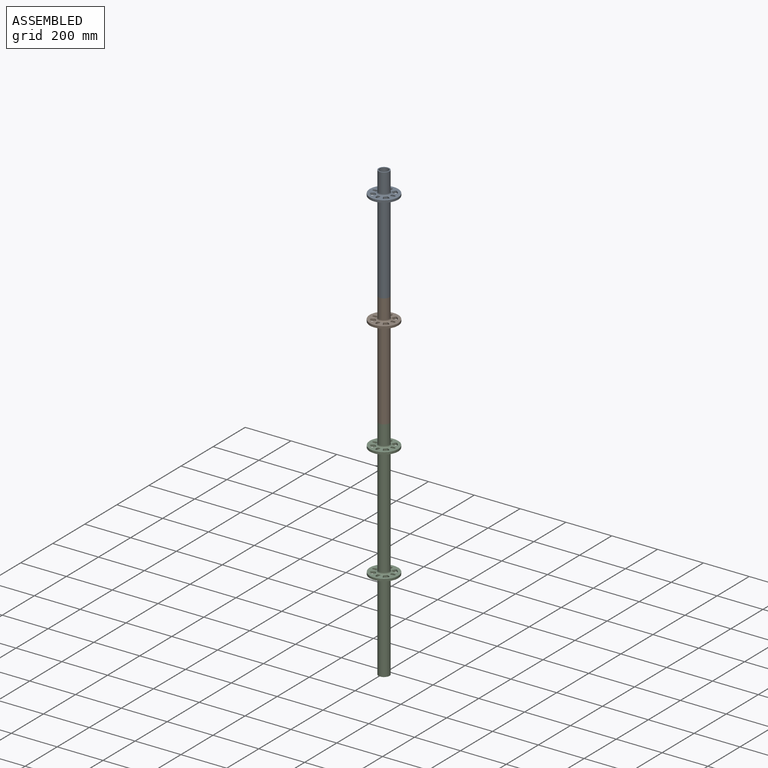
[diagram: assembled view]
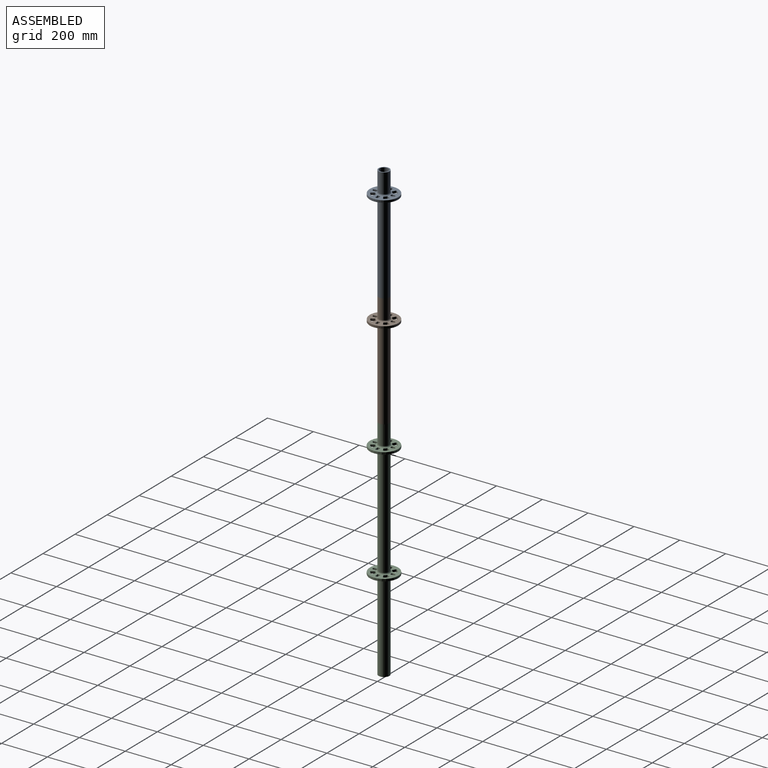
[diagram: assembled view, second angle]
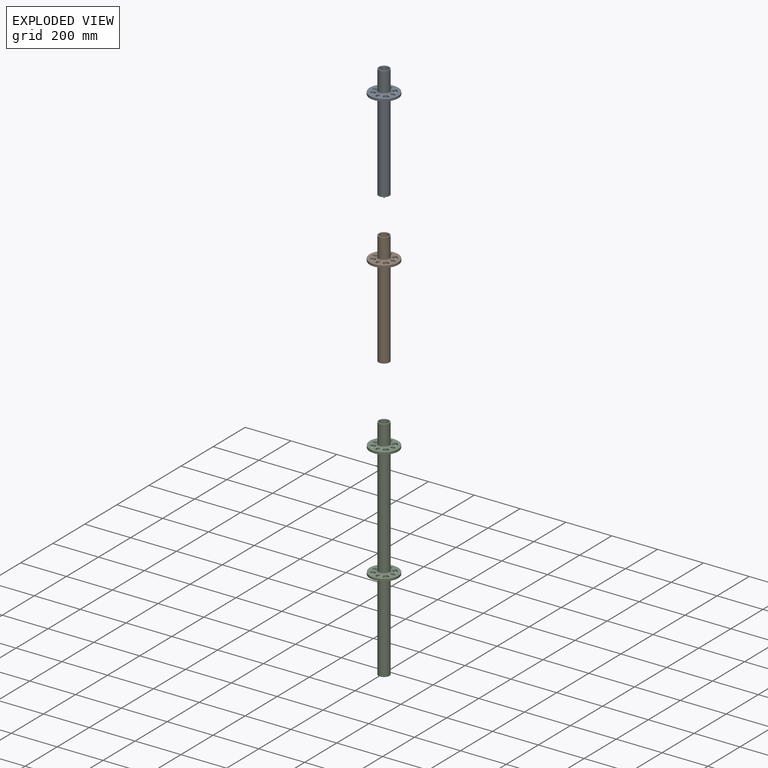
[diagram: exploded view]
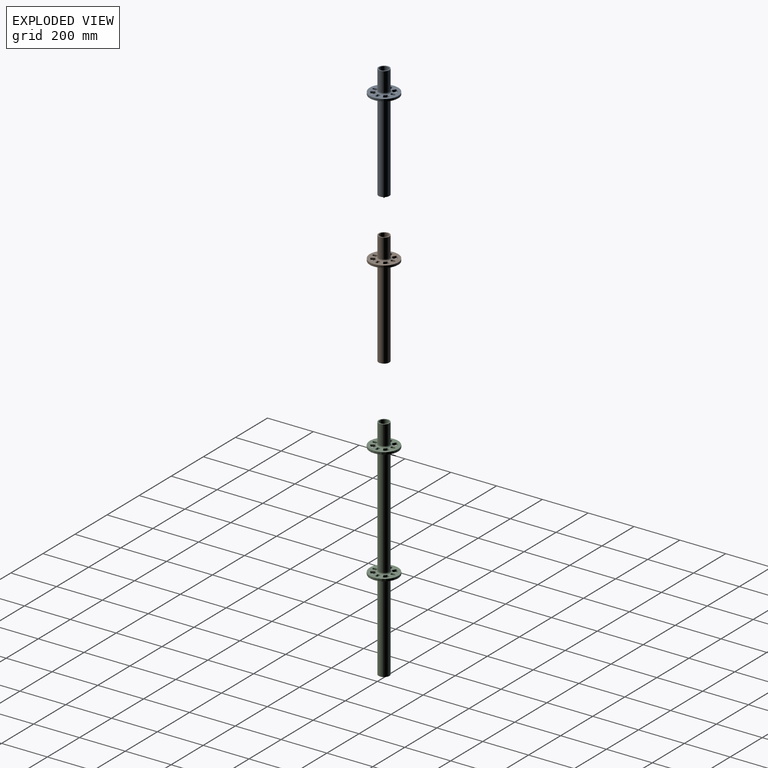
[diagram: exploded view, second angle]
ASSEMBLY  parts=3 mates=3
PART A: 82 faces, bbox 123.8x123.8x496.9 mm
  f0: plane 12.12x9.53mm, normal (-0.87,-0.5,0), area 133.3mm2, adj f1,f64,f73,f74
  f1: cylinder r=2.54mm len=9.53mm, axis (0,0,-1), area 36.1mm2, adj f0,f2,f73,f74
  f2: cylinder r=30.16mm len=9.53mm, axis (0,0,-1), area 105.8mm2, adj f1,f3,f80,f81
  f3: cylinder r=2.54mm len=9.53mm, axis (0,0,-1), area 36.1mm2, adj f2,f4,f73,f74
  f4: plane 12.12x9.53mm, normal (0.5,0.87,0), area 133.3mm2, adj f3,f5,f73,f74
  f5: cylinder r=2.54mm len=9.53mm, axis (0,0,-1), area 39.3mm2, adj f4,f6,f73,f74
  f6: cylinder r=49.21mm len=14.33mm, axis (0,0,-1), area 194.4mm2, adj f5,f64,f73,f74
  f7: cylinder r=28.8mm len=11.11mm, axis (0,0,-1), area 108.6mm2, adj f8,f65,f73,f74
  f8: plane 9.53x3.81mm, normal (-1,0,0), area 36.3mm2, adj f7,f9,f73,f74
  f9: cylinder r=2.54mm len=9.53mm, axis (0,0,-1), area 38mm2, adj f8,f10,f73,f74
  f10: plane 9.53x7.62mm, normal (0,1,0), area 72.6mm2, adj f9,f11,f73,f74
  f11: cylinder r=2.54mm len=9.53mm, axis (0,0,-1), area 38mm2, adj f10,f12,f73,f74
  f12: plane 9.53x3.81mm, normal (1,0,0), area 36.3mm2, adj f11,f13,f73,f74
  f13: cylinder r=28.8mm len=11.11mm, axis (0,0,-1), area 108.6mm2, adj f12,f14,f73,f74
  f14: cylinder r=2.54mm len=9.53mm, axis (0,0,-1), area 27.5mm2, adj f13,f15,f73,f74
  f15: cylinder r=49.21mm len=9.53mm, axis (0,0,-1), area 35.8mm2, adj f14,f65,f73,f74
  f16: plane 12.12x9.53mm, normal (0.5,-0.87,0), area 133.3mm2, adj f17,f66,f73,f74
  f17: cylinder r=2.54mm len=9.53mm, axis (0,0,-1), area 36.1mm2, adj f16,f18,f73,f74
  f18: cylinder r=30.16mm len=9.53mm, axis (0,0,-1), area 105.8mm2, adj f17,f19,f80,f81
  f19: cylinder r=2.54mm len=9.53mm, axis (0,0,-1), area 36.1mm2, adj f18,f20,f73,f74
  f20: plane 12.12x9.53mm, normal (-0.87,0.5,0), area 133.3mm2, adj f19,f21,f73,f74
  f21: cylinder r=2.54mm len=9.53mm, axis (0,0,-1), area 39.3mm2, adj f20,f22,f73,f74
  f22: cylinder r=49.21mm len=14.33mm, axis (0,0,-1), area 194.4mm2, adj f21,f66,f73,f74
  f23: cylinder r=28.8mm len=11.11mm, axis (0,0,-1), area 108.6mm2, adj f24,f67,f73,f74
  f24: plane 9.53x3.81mm, normal (0,-1,0), area 36.3mm2, adj f23,f25,f73,f74
  f25: cylinder r=2.54mm len=9.53mm, axis (0,0,-1), area 38mm2, adj f24,f26,f73,f74
  f26: plane 9.53x7.62mm, normal (-1,0,0), area 72.6mm2, adj f25,f27,f73,f74
  f27: cylinder r=2.54mm len=9.53mm, axis (0,0,-1), area 38mm2, adj f26,f28,f73,f74
  f28: plane 9.53x3.81mm, normal (0,1,0), area 36.3mm2, adj f27,f29,f73,f74
  f29: cylinder r=28.8mm len=11.11mm, axis (0,0,-1), area 108.6mm2, adj f28,f30,f73,f74
  f30: cylinder r=2.54mm len=9.53mm, axis (0,0,-1), area 27.5mm2, adj f29,f31,f73,f74
  f31: cylinder r=49.21mm len=9.53mm, axis (0,0,-1), area 35.8mm2, adj f30,f67,f73,f74
  f32: plane 12.12x9.53mm, normal (0.87,0.5,0), area 133.3mm2, adj f33,f68,f73,f74
  f33: cylinder r=2.54mm len=9.53mm, axis (0,0,-1), area 36.1mm2, adj f32,f34,f73,f74
  f34: cylinder r=30.16mm len=9.53mm, axis (0,0,-1), area 105.8mm2, adj f33,f35,f80,f81
  f35: cylinder r=2.54mm len=9.53mm, axis (0,0,-1), area 36.1mm2, adj f34,f36,f73,f74
  f36: plane 12.12x9.53mm, normal (-0.5,-0.87,0), area 133.3mm2, adj f35,f37,f73,f74
  f37: cylinder r=2.54mm len=9.53mm, axis (0,0,-1), area 39.3mm2, adj f36,f38,f73,f74
  f38: cylinder r=49.21mm len=14.33mm, axis (0,0,-1), area 194.4mm2, adj f37,f68,f73,f74
  f39: cylinder r=28.8mm len=11.11mm, axis (0,0,-1), area 108.6mm2, adj f40,f69,f73,f74
  f40: plane 9.53x3.81mm, normal (1,0,0), area 36.3mm2, adj f39,f41,f73,f74
  f41: cylinder r=2.54mm len=9.53mm, axis (0,0,-1), area 38mm2, adj f40,f42,f73,f74
  f42: plane 9.53x7.62mm, normal (0,-1,0), area 72.6mm2, adj f41,f43,f73,f74
  f43: cylinder r=2.54mm len=9.53mm, axis (0,0,-1), area 38mm2, adj f42,f44,f73,f74
  f44: plane 9.53x3.81mm, normal (-1,0,0), area 36.3mm2, adj f43,f45,f73,f74
  f45: cylinder r=28.8mm len=11.11mm, axis (0,0,-1), area 108.6mm2, adj f44,f46,f73,f74
  f46: cylinder r=2.54mm len=9.53mm, axis (0,0,-1), area 27.5mm2, adj f45,f47,f73,f74
  f47: cylinder r=49.21mm len=9.53mm, axis (0,0,-1), area 35.8mm2, adj f46,f69,f73,f74
  f48: cylinder r=28.8mm len=11.11mm, axis (0,0,-1), area 108.6mm2, adj f49,f70,f73,f74
  f49: plane 9.53x3.81mm, normal (0,1,0), area 36.3mm2, adj f48,f50,f73,f74
  f50: cylinder r=2.54mm len=9.53mm, axis (0,0,-1), area 38mm2, adj f49,f51,f73,f74
  f51: plane 9.53x7.62mm, normal (1,0,0), area 72.6mm2, adj f50,f52,f73,f74
  f52: cylinder r=2.54mm len=9.53mm, axis (0,0,-1), area 38mm2, adj f51,f53,f73,f74
  f53: plane 9.53x3.81mm, normal (0,-1,0), area 36.3mm2, adj f52,f54,f73,f74
  f54: cylinder r=28.8mm len=11.11mm, axis (0,0,-1), area 108.6mm2, adj f53,f55,f73,f74
  f55: cylinder r=2.54mm len=9.53mm, axis (0,0,-1), area 27.5mm2, adj f54,f56,f73,f74
  f56: cylinder r=49.21mm len=9.53mm, axis (0,0,-1), area 35.8mm2, adj f55,f70,f73,f74
  f57: cylinder r=2.54mm len=9.53mm, axis (0,0,-1), area 36.1mm2, adj f58,f71,f73,f74
  f58: cylinder r=30.16mm len=9.53mm, axis (0,0,-1), area 105.8mm2, adj f57,f59,f80,f81
  f59: cylinder r=2.54mm len=9.53mm, axis (0,0,-1), area 36.1mm2, adj f58,f60,f73,f74
  f60: plane 12.12x9.53mm, normal (0.87,-0.5,0), area 133.3mm2, adj f59,f61,f73,f74
  f61: cylinder r=2.54mm len=9.53mm, axis (0,0,-1), area 39.3mm2, adj f60,f62,f73,f74
  f62: cylinder r=49.21mm len=14.33mm, axis (0,0,-1), area 194.4mm2, adj f61,f63,f73,f74
  f63: cylinder r=2.54mm len=9.53mm, axis (0,0,-1), area 39.3mm2, adj f62,f71,f73,f74
  f64: cylinder r=2.54mm len=9.53mm, axis (0,0,-1), area 39.3mm2, adj f0,f6,f73,f74
  f65: cylinder r=2.54mm len=9.53mm, axis (0,0,-1), area 27.5mm2, adj f7,f15,f73,f74
  f66: cylinder r=2.54mm len=9.53mm, axis (0,0,-1), area 39.3mm2, adj f16,f22,f73,f74
  f67: cylinder r=2.54mm len=9.53mm, axis (0,0,-1), area 27.5mm2, adj f23,f31,f73,f74
  f68: cylinder r=2.54mm len=9.53mm, axis (0,0,-1), area 39.3mm2, adj f32,f38,f73,f74
  f69: cylinder r=2.54mm len=9.53mm, axis (0,0,-1), area 27.5mm2, adj f39,f47,f73,f74
  f70: cylinder r=2.54mm len=9.53mm, axis (0,0,-1), area 27.5mm2, adj f48,f56,f73,f74
  f71: plane 12.12x9.53mm, normal (-0.5,0.87,0), area 133.3mm2, adj f57,f63,f73,f74
  f72: cylinder r=61.91mm len=123.83mm, axis (0,0,-1), area 3705.3mm2, adj f73,f74
  f73: plane 123.83x123.83mm, normal (0,0,1), area 6768mm2, adj f0,f1,f3,f4,f5,f6,f7,f8
  f74: plane 123.83x123.83mm, normal (0,0,-1), area 6768mm2, adj f0,f1,f3,f4,f5,f6,f7,f8
  f75: cylinder r=23.81mm len=85.73mm, axis (0,0,-1), area 12826mm2, adj f78,f81
  f76: cylinder r=19.37mm len=496.89mm, axis (0,0,-1), area 60466mm2, adj f78,f79
  f77: cylinder r=23.81mm len=388.94mm, axis (0,0,-1), area 58192.2mm2, adj f79,f80
  f78: plane 47.63x47.63mm, normal (0,0,1), area 603mm2, adj f75,f76
  f79: plane 47.63x47.63mm, normal (0,0,-1), area 603mm2, adj f76,f77
  f80: torus R=30.16mm, axis (0,0,1), area 1637mm2, adj f2,f18,f34,f58,f74,f77
  f81: torus R=30.16mm, axis (0,0,1), area 1637mm2, adj f2,f18,f34,f58,f73,f75
PART B: same geometry as A
PART C: 160 faces, bbox 123.8x123.8x996.9 mm
  f0: plane 123.83x123.83mm, normal (0,0,-1), area 6768mm2, adj f10,f11,f17,f18,f19,f20,f21,f22
  f1: plane 123.83x123.83mm, normal (0,0,1), area 6768mm2, adj f11,f12,f17,f18,f19,f20,f21,f22
  f2: plane 47.63x47.63mm, normal (0,0,-1), area 603mm2, adj f3,f15
  f3: cylinder r=23.81mm len=388.94mm, axis (0,0,-1), area 58192.2mm2, adj f2,f4
  f4: torus R=30.16mm, axis (0,0,-1), area 1637mm2, adj f3,f5,f95,f101,f111,f119
  f5: plane 123.83x123.83mm, normal (0,0,-1), area 6768mm2, adj f4,f6,f88,f89,f90,f91,f92,f93
  f6: cylinder r=61.91mm len=123.83mm, axis (0,0,-1), area 3705.3mm2, adj f5,f7
  f7: plane 123.83x123.83mm, normal (0,0,1), area 6768mm2, adj f6,f8,f88,f89,f90,f91,f92,f93
  f8: torus R=30.16mm, axis (0,0,-1), area 1637mm2, adj f7,f9,f95,f101,f111,f119
  f9: cylinder r=23.81mm len=477.78mm, axis (0,0,-1), area 71483.9mm2, adj f8,f10
  f10: torus R=30.16mm, axis (0,0,-1), area 1637mm2, adj f0,f9,f16,f24,f32,f40
  f11: cylinder r=61.91mm len=123.83mm, axis (0,0,-1), area 3705.3mm2, adj f0,f1
  f12: torus R=30.16mm, axis (0,0,-1), area 1637mm2, adj f1,f13,f16,f24,f32,f40
  f13: cylinder r=23.81mm len=85.73mm, axis (0,0,-1), area 12826mm2, adj f12,f14
  f14: plane 47.63x47.63mm, normal (0,0,1), area 603mm2, adj f13,f15
  f15: cylinder r=19.37mm len=996.89mm, axis (0,0,1), area 121310.8mm2, adj f2,f14
  f16: cylinder r=30.16mm len=9.53mm, axis (0,0,1), area 105.8mm2, adj f10,f12,f17,f23
  f17: cylinder r=2.54mm len=9.53mm, axis (0,0,1), area 36.1mm2, adj f0,f1,f16,f18
  f18: plane 12.12x9.53mm, normal (0.5,0.87,0), area 133.3mm2, adj f0,f1,f17,f19
  f19: cylinder r=2.54mm len=9.53mm, axis (0,0,1), area 39.3mm2, adj f0,f1,f18,f20
  f20: cylinder r=49.21mm len=14.33mm, axis (0,0,1), area 194.4mm2, adj f0,f1,f19,f21
  f21: cylinder r=2.54mm len=9.53mm, axis (0,0,1), area 39.3mm2, adj f0,f1,f20,f22
  f22: plane 12.12x9.53mm, normal (-0.87,-0.5,0), area 133.3mm2, adj f0,f1,f21,f23
  f23: cylinder r=2.54mm len=9.53mm, axis (0,0,1), area 36.1mm2, adj f0,f1,f16,f22
  f24: cylinder r=30.16mm len=9.53mm, axis (0,0,1), area 105.8mm2, adj f10,f12,f25,f31
  f25: cylinder r=2.54mm len=9.53mm, axis (0,0,1), area 36.1mm2, adj f0,f1,f24,f26
  f26: plane 12.12x9.53mm, normal (0.87,-0.5,0), area 133.3mm2, adj f0,f1,f25,f27
  f27: cylinder r=2.54mm len=9.53mm, axis (0,0,1), area 39.3mm2, adj f0,f1,f26,f28
  f28: cylinder r=49.21mm len=14.33mm, axis (0,0,1), area 194.4mm2, adj f0,f1,f27,f29
  f29: cylinder r=2.54mm len=9.53mm, axis (0,0,1), area 39.3mm2, adj f0,f1,f28,f30
  f30: plane 12.12x9.53mm, normal (-0.5,0.87,0), area 133.3mm2, adj f0,f1,f29,f31
  f31: cylinder r=2.54mm len=9.53mm, axis (0,0,1), area 36.1mm2, adj f0,f1,f24,f30
  f32: cylinder r=30.16mm len=9.53mm, axis (0,0,1), area 105.8mm2, adj f10,f12,f33,f39
  f33: cylinder r=2.54mm len=9.53mm, axis (0,0,1), area 36.1mm2, adj f0,f1,f32,f34
  f34: plane 12.12x9.53mm, normal (-0.5,-0.87,0), area 133.3mm2, adj f0,f1,f33,f35
  f35: cylinder r=2.54mm len=9.53mm, axis (0,0,1), area 39.3mm2, adj f0,f1,f34,f36
  f36: cylinder r=49.21mm len=14.33mm, axis (0,0,1), area 194.4mm2, adj f0,f1,f35,f37
  f37: cylinder r=2.54mm len=9.53mm, axis (0,0,1), area 39.3mm2, adj f0,f1,f36,f38
  f38: plane 12.12x9.53mm, normal (0.87,0.5,0), area 133.3mm2, adj f0,f1,f37,f39
  f39: cylinder r=2.54mm len=9.53mm, axis (0,0,1), area 36.1mm2, adj f0,f1,f32,f38
  f40: cylinder r=30.16mm len=9.53mm, axis (0,0,1), area 105.8mm2, adj f10,f12,f41,f47
  f41: cylinder r=2.54mm len=9.53mm, axis (0,0,1), area 36.1mm2, adj f0,f1,f40,f42
  f42: plane 12.12x9.53mm, normal (-0.87,0.5,0), area 133.3mm2, adj f0,f1,f41,f43
  f43: cylinder r=2.54mm len=9.53mm, axis (0,0,1), area 39.3mm2, adj f0,f1,f42,f44
  f44: cylinder r=49.21mm len=14.33mm, axis (0,0,1), area 194.4mm2, adj f0,f1,f43,f45
  f45: cylinder r=2.54mm len=9.53mm, axis (0,0,1), area 39.3mm2, adj f0,f1,f44,f46
  f46: plane 12.12x9.53mm, normal (0.5,-0.87,0), area 133.3mm2, adj f0,f1,f45,f47
  f47: cylinder r=2.54mm len=9.53mm, axis (0,0,1), area 36.1mm2, adj f0,f1,f40,f46
  f48: cylinder r=2.54mm len=9.53mm, axis (0,0,1), area 38mm2, adj f0,f1,f49,f57
  f49: plane 9.53x7.62mm, normal (1,0,0), area 72.6mm2, adj f0,f1,f48,f50
  f50: cylinder r=2.54mm len=9.53mm, axis (0,0,1), area 38mm2, adj f0,f1,f49,f51
  f51: plane 9.53x3.81mm, normal (0,-1,0), area 36.3mm2, adj f0,f1,f50,f52
  f52: cylinder r=28.8mm len=11.11mm, axis (0,0,1), area 108.6mm2, adj f0,f1,f51,f53
  f53: cylinder r=2.54mm len=9.53mm, axis (0,0,1), area 27.5mm2, adj f0,f1,f52,f54
  f54: cylinder r=49.21mm len=9.53mm, axis (0,0,1), area 35.8mm2, adj f0,f1,f53,f55
  f55: cylinder r=2.54mm len=9.53mm, axis (0,0,1), area 27.5mm2, adj f0,f1,f54,f56
  f56: cylinder r=28.8mm len=11.11mm, axis (0,0,1), area 108.6mm2, adj f0,f1,f55,f57
  f57: plane 9.53x3.81mm, normal (0,1,0), area 36.3mm2, adj f0,f1,f48,f56
  f58: cylinder r=2.54mm len=9.53mm, axis (0,0,1), area 38mm2, adj f0,f1,f59,f67
  f59: plane 9.53x7.62mm, normal (0,1,0), area 72.6mm2, adj f0,f1,f58,f60
  f60: cylinder r=2.54mm len=9.53mm, axis (0,0,1), area 38mm2, adj f0,f1,f59,f61
  f61: plane 9.53x3.81mm, normal (1,0,0), area 36.3mm2, adj f0,f1,f60,f62
  f62: cylinder r=28.8mm len=11.11mm, axis (0,0,1), area 108.6mm2, adj f0,f1,f61,f63
  f63: cylinder r=2.54mm len=9.53mm, axis (0,0,1), area 27.5mm2, adj f0,f1,f62,f64
  f64: cylinder r=49.21mm len=9.53mm, axis (0,0,1), area 35.8mm2, adj f0,f1,f63,f65
  f65: cylinder r=2.54mm len=9.53mm, axis (0,0,1), area 27.5mm2, adj f0,f1,f64,f66
  f66: cylinder r=28.8mm len=11.11mm, axis (0,0,1), area 108.6mm2, adj f0,f1,f65,f67
  f67: plane 9.53x3.81mm, normal (-1,0,0), area 36.3mm2, adj f0,f1,f58,f66
  f68: cylinder r=2.54mm len=9.53mm, axis (0,0,1), area 38mm2, adj f0,f1,f69,f77
  f69: plane 9.53x7.62mm, normal (0,-1,0), area 72.6mm2, adj f0,f1,f68,f70
  f70: cylinder r=2.54mm len=9.53mm, axis (0,0,1), area 38mm2, adj f0,f1,f69,f71
  f71: plane 9.53x3.81mm, normal (-1,0,0), area 36.3mm2, adj f0,f1,f70,f72
  f72: cylinder r=28.8mm len=11.11mm, axis (0,0,1), area 108.6mm2, adj f0,f1,f71,f73
  f73: cylinder r=2.54mm len=9.53mm, axis (0,0,1), area 27.5mm2, adj f0,f1,f72,f74
  f74: cylinder r=49.21mm len=9.53mm, axis (0,0,1), area 35.8mm2, adj f0,f1,f73,f75
  f75: cylinder r=2.54mm len=9.53mm, axis (0,0,1), area 27.5mm2, adj f0,f1,f74,f76
  f76: cylinder r=28.8mm len=11.11mm, axis (0,0,1), area 108.6mm2, adj f0,f1,f75,f77
  f77: plane 9.53x3.81mm, normal (1,0,0), area 36.3mm2, adj f0,f1,f68,f76
  f78: cylinder r=2.54mm len=9.53mm, axis (0,0,1), area 38mm2, adj f0,f1,f79,f87
  f79: plane 9.53x7.62mm, normal (-1,0,0), area 72.6mm2, adj f0,f1,f78,f80
  f80: cylinder r=2.54mm len=9.53mm, axis (0,0,1), area 38mm2, adj f0,f1,f79,f81
  f81: plane 9.53x3.81mm, normal (0,1,0), area 36.3mm2, adj f0,f1,f80,f82
  f82: cylinder r=28.8mm len=11.11mm, axis (0,0,1), area 108.6mm2, adj f0,f1,f81,f83
  f83: cylinder r=2.54mm len=9.53mm, axis (0,0,1), area 27.5mm2, adj f0,f1,f82,f84
  f84: cylinder r=49.21mm len=9.53mm, axis (0,0,1), area 35.8mm2, adj f0,f1,f83,f85
  f85: cylinder r=2.54mm len=9.53mm, axis (0,0,1), area 27.5mm2, adj f0,f1,f84,f86
  f86: cylinder r=28.8mm len=11.11mm, axis (0,0,1), area 108.6mm2, adj f0,f1,f85,f87
  f87: plane 9.53x3.81mm, normal (0,-1,0), area 36.3mm2, adj f0,f1,f78,f86
  f88: plane 12.12x9.53mm, normal (-0.87,-0.5,0), area 133.3mm2, adj f5,f7,f89,f93
  f89: cylinder r=2.54mm len=9.53mm, axis (0,0,1), area 39.3mm2, adj f5,f7,f88,f90
  f90: cylinder r=49.21mm len=14.33mm, axis (0,0,1), area 194.4mm2, adj f5,f7,f89,f91
  f91: cylinder r=2.54mm len=9.53mm, axis (0,0,1), area 39.3mm2, adj f5,f7,f90,f92
  f92: plane 12.12x9.53mm, normal (0.5,0.87,0), area 133.3mm2, adj f5,f7,f91,f94
  f93: cylinder r=2.54mm len=9.53mm, axis (0,0,1), area 36.1mm2, adj f5,f7,f88,f95
  f94: cylinder r=2.54mm len=9.53mm, axis (0,0,1), area 36.1mm2, adj f5,f7,f92,f95
  f95: cylinder r=30.16mm len=9.53mm, axis (0,0,1), area 105.8mm2, adj f4,f8,f93,f94
  f96: plane 12.12x9.53mm, normal (-0.5,0.87,0), area 133.3mm2, adj f5,f7,f97,f102
  f97: cylinder r=2.54mm len=9.53mm, axis (0,0,1), area 39.3mm2, adj f5,f7,f96,f98
  f98: cylinder r=49.21mm len=14.33mm, axis (0,0,1), area 194.4mm2, adj f5,f7,f97,f99
  f99: cylinder r=2.54mm len=9.53mm, axis (0,0,1), area 39.3mm2, adj f5,f7,f98,f100
  f100: plane 12.12x9.53mm, normal (0.87,-0.5,0), area 133.3mm2, adj f5,f7,f99,f103
  f101: cylinder r=30.16mm len=9.53mm, axis (0,0,1), area 105.8mm2, adj f4,f8,f102,f103
  f102: cylinder r=2.54mm len=9.53mm, axis (0,0,1), area 36.1mm2, adj f5,f7,f96,f101
  f103: cylinder r=2.54mm len=9.53mm, axis (0,0,1), area 36.1mm2, adj f5,f7,f100,f101
  f104: plane 12.12x9.53mm, normal (0.87,0.5,0), area 133.3mm2, adj f5,f7,f105,f109
  f105: cylinder r=2.54mm len=9.53mm, axis (0,0,1), area 39.3mm2, adj f5,f7,f104,f106
  f106: cylinder r=49.21mm len=14.33mm, axis (0,0,1), area 194.4mm2, adj f5,f7,f105,f107
  f107: cylinder r=2.54mm len=9.53mm, axis (0,0,1), area 39.3mm2, adj f5,f7,f106,f108
  f108: plane 12.12x9.53mm, normal (-0.5,-0.87,0), area 133.3mm2, adj f5,f7,f107,f110
  f109: cylinder r=2.54mm len=9.53mm, axis (0,0,1), area 36.1mm2, adj f5,f7,f104,f111
  f110: cylinder r=2.54mm len=9.53mm, axis (0,0,1), area 36.1mm2, adj f5,f7,f108,f111
  f111: cylinder r=30.16mm len=9.53mm, axis (0,0,1), area 105.8mm2, adj f4,f8,f109,f110
  f112: plane 12.12x9.53mm, normal (0.5,-0.87,0), area 133.3mm2, adj f5,f7,f113,f117
  f113: cylinder r=2.54mm len=9.53mm, axis (0,0,1), area 39.3mm2, adj f5,f7,f112,f114
  f114: cylinder r=49.21mm len=14.33mm, axis (0,0,1), area 194.4mm2, adj f5,f7,f113,f115
  f115: cylinder r=2.54mm len=9.53mm, axis (0,0,1), area 39.3mm2, adj f5,f7,f114,f116
  f116: plane 12.12x9.53mm, normal (-0.87,0.5,0), area 133.3mm2, adj f5,f7,f115,f118
  f117: cylinder r=2.54mm len=9.53mm, axis (0,0,1), area 36.1mm2, adj f5,f7,f112,f119
  f118: cylinder r=2.54mm len=9.53mm, axis (0,0,1), area 36.1mm2, adj f5,f7,f116,f119
  f119: cylinder r=30.16mm len=9.53mm, axis (0,0,1), area 105.8mm2, adj f4,f8,f117,f118
  f120: plane 9.53x3.81mm, normal (0,1,0), area 36.3mm2, adj f5,f7,f121,f128
  f121: cylinder r=28.8mm len=11.11mm, axis (0,0,1), area 108.6mm2, adj f5,f7,f120,f122
  f122: cylinder r=2.54mm len=9.53mm, axis (0,0,1), area 27.5mm2, adj f5,f7,f121,f123
  f123: cylinder r=49.21mm len=9.53mm, axis (0,0,1), area 35.8mm2, adj f5,f7,f122,f124
  f124: cylinder r=2.54mm len=9.53mm, axis (0,0,1), area 27.5mm2, adj f5,f7,f123,f125
  f125: cylinder r=28.8mm len=11.11mm, axis (0,0,1), area 108.6mm2, adj f5,f7,f124,f126
  f126: plane 9.53x3.81mm, normal (0,-1,0), area 36.3mm2, adj f5,f7,f125,f127
  f127: cylinder r=2.54mm len=9.53mm, axis (0,0,1), area 38mm2, adj f5,f7,f126,f129
  f128: cylinder r=2.54mm len=9.53mm, axis (0,0,1), area 38mm2, adj f5,f7,f120,f129
  f129: plane 9.53x7.62mm, normal (1,0,0), area 72.6mm2, adj f5,f7,f127,f128
  f130: plane 9.53x3.81mm, normal (-1,0,0), area 36.3mm2, adj f5,f7,f131,f138
  f131: cylinder r=28.8mm len=11.11mm, axis (0,0,1), area 108.6mm2, adj f5,f7,f130,f132
  f132: cylinder r=2.54mm len=9.53mm, axis (0,0,1), area 27.5mm2, adj f5,f7,f131,f133
  f133: cylinder r=49.21mm len=9.53mm, axis (0,0,1), area 35.8mm2, adj f5,f7,f132,f134
  f134: cylinder r=2.54mm len=9.53mm, axis (0,0,1), area 27.5mm2, adj f5,f7,f133,f135
  f135: cylinder r=28.8mm len=11.11mm, axis (0,0,1), area 108.6mm2, adj f5,f7,f134,f136
  f136: plane 9.53x3.81mm, normal (1,0,0), area 36.3mm2, adj f5,f7,f135,f137
  f137: cylinder r=2.54mm len=9.53mm, axis (0,0,1), area 38mm2, adj f5,f7,f136,f139
  f138: cylinder r=2.54mm len=9.53mm, axis (0,0,1), area 38mm2, adj f5,f7,f130,f139
  f139: plane 9.53x7.62mm, normal (0,1,0), area 72.6mm2, adj f5,f7,f137,f138
  f140: plane 9.53x3.81mm, normal (1,0,0), area 36.3mm2, adj f5,f7,f141,f148
  f141: cylinder r=28.8mm len=11.11mm, axis (0,0,1), area 108.6mm2, adj f5,f7,f140,f142
  f142: cylinder r=2.54mm len=9.53mm, axis (0,0,1), area 27.5mm2, adj f5,f7,f141,f143
  f143: cylinder r=49.21mm len=9.53mm, axis (0,0,1), area 35.8mm2, adj f5,f7,f142,f144
  f144: cylinder r=2.54mm len=9.53mm, axis (0,0,1), area 27.5mm2, adj f5,f7,f143,f145
  f145: cylinder r=28.8mm len=11.11mm, axis (0,0,1), area 108.6mm2, adj f5,f7,f144,f146
  f146: plane 9.53x3.81mm, normal (-1,0,0), area 36.3mm2, adj f5,f7,f145,f147
  f147: cylinder r=2.54mm len=9.53mm, axis (0,0,1), area 38mm2, adj f5,f7,f146,f149
  f148: cylinder r=2.54mm len=9.53mm, axis (0,0,1), area 38mm2, adj f5,f7,f140,f149
  f149: plane 9.53x7.62mm, normal (0,-1,0), area 72.6mm2, adj f5,f7,f147,f148
  f150: plane 9.53x3.81mm, normal (0,-1,0), area 36.3mm2, adj f5,f7,f151,f158
  f151: cylinder r=28.8mm len=11.11mm, axis (0,0,1), area 108.6mm2, adj f5,f7,f150,f152
  f152: cylinder r=2.54mm len=9.53mm, axis (0,0,1), area 27.5mm2, adj f5,f7,f151,f153
  f153: cylinder r=49.21mm len=9.53mm, axis (0,0,1), area 35.8mm2, adj f5,f7,f152,f154
  f154: cylinder r=2.54mm len=9.53mm, axis (0,0,1), area 27.5mm2, adj f5,f7,f153,f155
  f155: cylinder r=28.8mm len=11.11mm, axis (0,0,1), area 108.6mm2, adj f5,f7,f154,f156
  f156: plane 9.53x3.81mm, normal (0,1,0), area 36.3mm2, adj f5,f7,f155,f157
  f157: cylinder r=2.54mm len=9.53mm, axis (0,0,1), area 38mm2, adj f5,f7,f156,f159
  f158: cylinder r=2.54mm len=9.53mm, axis (0,0,1), area 38mm2, adj f5,f7,f150,f159
  f159: plane 9.53x7.62mm, normal (-1,0,0), area 72.6mm2, adj f5,f7,f157,f158
PLACE A t=(-34.95,-255.17,1274.17)mm
PLACE B t=(-34.95,-255.17,777.28)mm
PLACE C t=(-34.95,-255.17,-219.61)mm
MATE revolute B.f56 <-> C.f3  axis (0,0,-1) through (-34.95,-255.17,381.99)mm
MATE revolute B.f56 <-> A.f56  axis (0,0,1) through (-34.95,-255.17,878.88)mm
MATE planar A.f56 <-> B.f56  axis (0,0,1) through (-34.95,-255.17,878.88)mm
